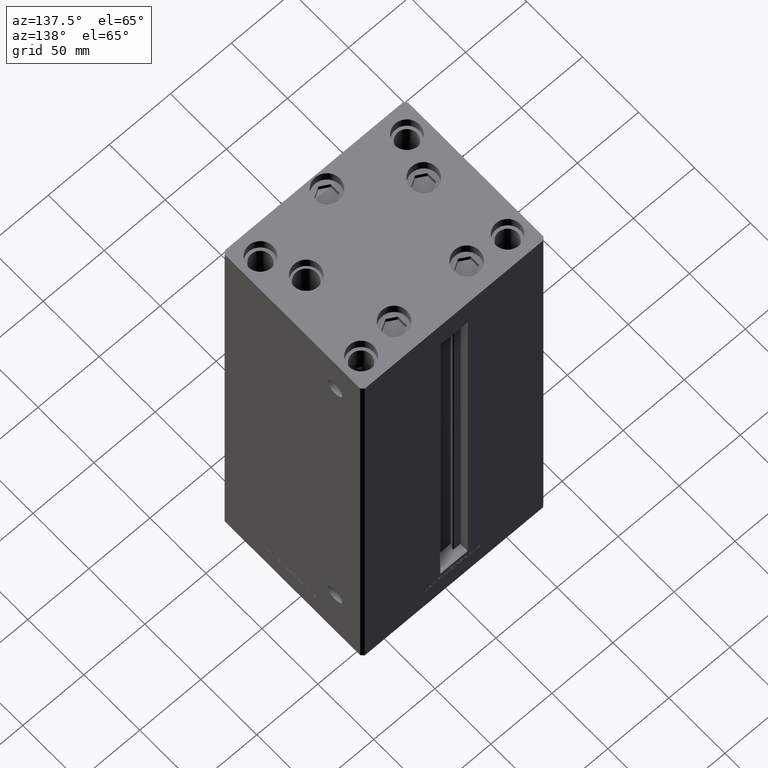
[diagram: clean part render]
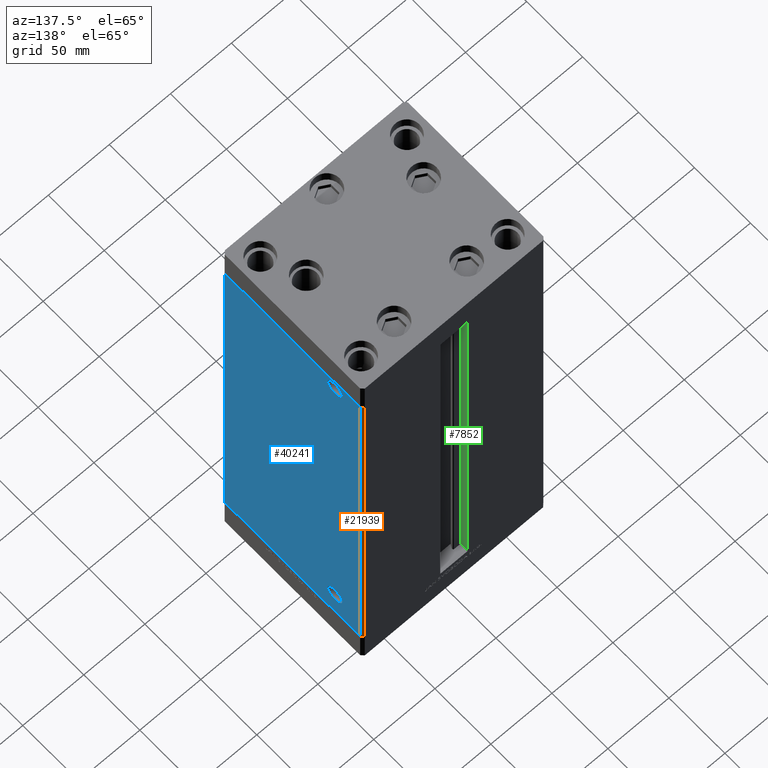
[diagram: same view with three faces highlighted in distinct colors, each labeled with its STEP entity id]
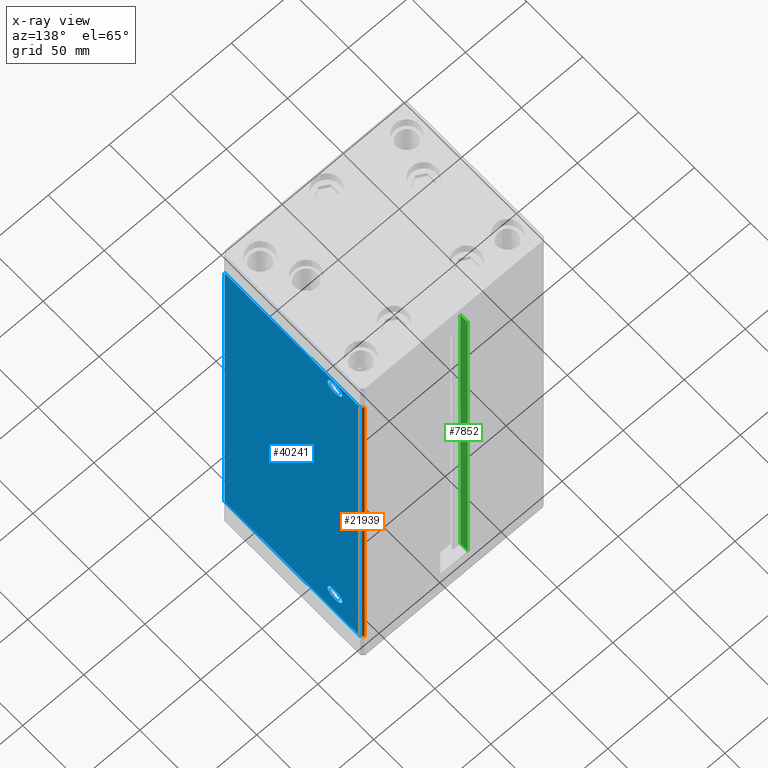
[diagram: x-ray of the same camera — body ghosted, the three highlighted faces saturated]
A machine part, auxiliary view with three faces highlighted in distinct colors.
The next image is the same camera in x-ray (body ghosted, the three faces saturated) — at least one of them is partly hidden behind the body in this view.
Their STEP definitions:

[orange] entity #21939 — the highlighted planar face has unit normal (0.7071, 0.7071, 0).
#159 = CARTESIAN_POINT ( 'NONE',  ( 73.00000000000001421, 62.50000000000000000, 0.000000000000000000 ) ) ;
#531 = CARTESIAN_POINT ( 'NONE',  ( 73.00000000000001421, 62.50000000000000000, 327.0000000000000000 ) ) ;
#1547 = DIRECTION ( 'NONE',  ( 0.7071067811865474617, -0.7071067811865474617, 0.000000000000000000 ) ) ;
#1900 = CARTESIAN_POINT ( 'NONE',  ( 73.00000000000001421, 62.50000000000000000, 327.0000000000000000 ) ) ;
#3966 = VECTOR ( 'NONE', #17915, 1000.000000000000114 ) ;
#4457 = VERTEX_POINT ( 'NONE', #159 ) ;
#5680 = LINE ( 'NONE', #10410, #3966 ) ;
#5817 = VERTEX_POINT ( 'NONE', #13581 ) ;
#6409 = DIRECTION ( 'NONE',  ( -0.000000000000000000, -0.000000000000000000, -1.000000000000000000 ) ) ;
#7306 = DIRECTION ( 'NONE',  ( -0.000000000000000000, -0.000000000000000000, -1.000000000000000000 ) ) ;
#9971 = VECTOR ( 'NONE', #1547, 1000.000000000000114 ) ;
#10410 = CARTESIAN_POINT ( 'NONE',  ( 73.00000000000001421, 62.50000000000000000, 0.000000000000000000 ) ) ;
#13076 = ORIENTED_EDGE ( 'NONE', *, *, #38997, .T. ) ;
#13581 = CARTESIAN_POINT ( 'NONE',  ( 75.00000000000001421, 60.50000000000000000, 0.000000000000000000 ) ) ;
#14394 = LINE ( 'NONE', #33140, #48057 ) ;
#14918 = ORIENTED_EDGE ( 'NONE', *, *, #16896, .F. ) ;
#16896 = EDGE_CURVE ( 'NONE', #4457, #5817, #5680, .T. ) ;
#17915 = DIRECTION ( 'NONE',  ( 0.7071067811865474617, -0.7071067811865474617, 0.000000000000000000 ) ) ;
#19343 = ORIENTED_EDGE ( 'NONE', *, *, #28797, .T. ) ;
#19863 = VECTOR ( 'NONE', #7306, 1000.000000000000000 ) ;
#21939 = ADVANCED_FACE ( 'NONE', ( #31906 ), #48089, .T. ) ;
#22063 = VERTEX_POINT ( 'NONE', #25878 ) ;
#22816 = LINE ( 'NONE', #45265, #19863 ) ;
#23570 = CARTESIAN_POINT ( 'NONE',  ( 73.00000000000001421, 62.50000000000000000, 327.0000000000000000 ) ) ;
#25021 = EDGE_LOOP ( 'NONE', ( #14918, #44081, #13076, #19343 ) ) ;
#25878 = CARTESIAN_POINT ( 'NONE',  ( 75.00000000000001421, 60.50000000000000000, 327.0000000000000000 ) ) ;
#28402 = DIRECTION ( 'NONE',  ( -0.7071067811865474617, 0.7071067811865474617, 0.000000000000000000 ) ) ;
#28797 = EDGE_CURVE ( 'NONE', #22063, #5817, #14394, .T. ) ;
#31906 = FACE_OUTER_BOUND ( 'NONE', #25021, .T. ) ;
#33140 = CARTESIAN_POINT ( 'NONE',  ( 75.00000000000001421, 60.50000000000000000, 327.0000000000000000 ) ) ;
#35772 = LINE ( 'NONE', #23570, #9971 ) ;
#38997 = EDGE_CURVE ( 'NONE', #40280, #22063, #35772, .T. ) ;
#39370 = DIRECTION ( 'NONE',  ( 0.7071067811865475727, 0.7071067811865475727, -0.000000000000000000 ) ) ;
#40280 = VERTEX_POINT ( 'NONE', #531 ) ;
#43120 = AXIS2_PLACEMENT_3D ( 'NONE', #1900, #39370, #28402 ) ;
#44081 = ORIENTED_EDGE ( 'NONE', *, *, #47719, .F. ) ;
#45265 = CARTESIAN_POINT ( 'NONE',  ( 73.00000000000001421, 62.50000000000000000, 327.0000000000000000 ) ) ;
#47719 = EDGE_CURVE ( 'NONE', #40280, #4457, #22816, .T. ) ;
#48057 = VECTOR ( 'NONE', #6409, 1000.000000000000000 ) ;
#48089 = PLANE ( 'NONE',  #43120 ) ;

[blue] entity #40241 — the highlighted planar face has unit normal (1, -0, 0).
#789 = EDGE_CURVE ( 'NONE', #23866, #26003, #41875, .T. ) ;
#3796 = DIRECTION ( 'NONE',  ( 1.000000000000000000, -2.293849224432141861E-16, 0.000000000000000000 ) ) ;
#5817 = VERTEX_POINT ( 'NONE', #13581 ) ;
#6409 = DIRECTION ( 'NONE',  ( -0.000000000000000000, -0.000000000000000000, -1.000000000000000000 ) ) ;
#6934 = ORIENTED_EDGE ( 'NONE', *, *, #38247, .F. ) ;
#7827 = CARTESIAN_POINT ( 'NONE',  ( 75.00000000000001421, 60.50000000000000000, 327.0000000000000000 ) ) ;
#7913 = CARTESIAN_POINT ( 'NONE',  ( 75.00000000000001421, 44.58000000000000540, 24.00000000000000711 ) ) ;
#8686 = CARTESIAN_POINT ( 'NONE',  ( 75.00000000000001421, 31.41999999999999105, 24.00000000000000711 ) ) ;
#10513 = DIRECTION ( 'NONE',  ( 0.000000000000000000, 1.000000000000000000, 0.000000000000000000 ) ) ;
#11194 = EDGE_CURVE ( 'NONE', #5817, #36886, #20135, .T. ) ;
#11327 = LINE ( 'NONE', #7827, #18315 ) ;
#12875 = CARTESIAN_POINT ( 'NONE',  ( 75.00000000000001421, 60.50000000000000000, 0.000000000000000000 ) ) ;
#13016 = AXIS2_PLACEMENT_3D ( 'NONE', #41290, #45024, #40308 ) ;
#13180 = CIRCLE ( 'NONE', #36327, 6.579999999999988525 ) ;
#13262 = AXIS2_PLACEMENT_3D ( 'NONE', #29065, #3796, #37766 ) ;
#13432 = LINE ( 'NONE', #28436, #39429 ) ;
#13581 = CARTESIAN_POINT ( 'NONE',  ( 75.00000000000001421, 60.50000000000000000, 0.000000000000000000 ) ) ;
#14394 = LINE ( 'NONE', #33140, #48057 ) ;
#14513 = DIRECTION ( 'NONE',  ( 1.000000000000000000, -2.275047181608927644E-16, 0.000000000000000000 ) ) ;
#15775 = EDGE_LOOP ( 'NONE', ( #43745, #17147, #36668, #42559 ) ) ;
#16673 = DIRECTION ( 'NONE',  ( 0.000000000000000000, 1.000000000000000000, 0.000000000000000000 ) ) ;
#17147 = ORIENTED_EDGE ( 'NONE', *, *, #28797, .F. ) ;
#18315 = VECTOR ( 'NONE', #42301, 1000.000000000000000 ) ;
#18671 = EDGE_CURVE ( 'NONE', #22063, #22925, #11327, .T. ) ;
#19008 = ORIENTED_EDGE ( 'NONE', *, *, #29496, .F. ) ;
#20135 = LINE ( 'NONE', #12875, #32548 ) ;
#21326 = PLANE ( 'NONE',  #13262 ) ;
#21749 = CIRCLE ( 'NONE', #48058, 6.580000000000009841 ) ;
#22063 = VERTEX_POINT ( 'NONE', #25878 ) ;
#22365 = DIRECTION ( 'NONE',  ( -2.293849224432141861E-16, -1.000000000000000000, 0.000000000000000000 ) ) ;
#22512 = CARTESIAN_POINT ( 'NONE',  ( 74.99999999999998579, -60.50000000000000000, 0.000000000000000000 ) ) ;
#22597 = CIRCLE ( 'NONE', #13016, 6.579999999999988525 ) ;
#22925 = VERTEX_POINT ( 'NONE', #36375 ) ;
#23011 = ORIENTED_EDGE ( 'NONE', *, *, #26722, .F. ) ;
#23866 = VERTEX_POINT ( 'NONE', #8686 ) ;
#24258 = EDGE_LOOP ( 'NONE', ( #23011, #30645 ) ) ;
#25491 = VERTEX_POINT ( 'NONE', #32570 ) ;
#25878 = CARTESIAN_POINT ( 'NONE',  ( 75.00000000000001421, 60.50000000000000000, 327.0000000000000000 ) ) ;
#26003 = VERTEX_POINT ( 'NONE', #7913 ) ;
#26722 = EDGE_CURVE ( 'NONE', #26003, #23866, #21749, .T. ) ;
#28096 = DIRECTION ( 'NONE',  ( 1.000000000000000000, -2.275047181608927644E-16, 0.000000000000000000 ) ) ;
#28436 = CARTESIAN_POINT ( 'NONE',  ( 74.99999999999998579, -60.50000000000000000, 327.0000000000000000 ) ) ;
#28797 = EDGE_CURVE ( 'NONE', #22063, #5817, #14394, .T. ) ;
#28825 = FACE_BOUND ( 'NONE', #33007, .T. ) ;
#28935 = DIRECTION ( 'NONE',  ( -0.000000000000000000, -0.000000000000000000, -1.000000000000000000 ) ) ;
#29065 = CARTESIAN_POINT ( 'NONE',  ( 75.00000000000001421, 60.50000000000000000, 327.0000000000000000 ) ) ;
#29496 = EDGE_CURVE ( 'NONE', #34775, #25491, #22597, .T. ) ;
#30645 = ORIENTED_EDGE ( 'NONE', *, *, #789, .F. ) ;
#32548 = VECTOR ( 'NONE', #22365, 1000.000000000000000 ) ;
#32570 = CARTESIAN_POINT ( 'NONE',  ( 75.00000000000001421, 31.42000000000000881, 318.0000000000000000 ) ) ;
#33007 = EDGE_LOOP ( 'NONE', ( #19008, #6934 ) ) ;
#33041 = EDGE_CURVE ( 'NONE', #22925, #36886, #13432, .T. ) ;
#33140 = CARTESIAN_POINT ( 'NONE',  ( 75.00000000000001421, 60.50000000000000000, 327.0000000000000000 ) ) ;
#34775 = VERTEX_POINT ( 'NONE', #40831 ) ;
#36327 = AXIS2_PLACEMENT_3D ( 'NONE', #47864, #47617, #16673 ) ;
#36375 = CARTESIAN_POINT ( 'NONE',  ( 74.99999999999998579, -60.50000000000000000, 327.0000000000000000 ) ) ;
#36668 = ORIENTED_EDGE ( 'NONE', *, *, #18671, .T. ) ;
#36886 = VERTEX_POINT ( 'NONE', #22512 ) ;
#37766 = DIRECTION ( 'NONE',  ( 2.293849224432141861E-16, 1.000000000000000000, 0.000000000000000000 ) ) ;
#38247 = EDGE_CURVE ( 'NONE', #25491, #34775, #13180, .T. ) ;
#38822 = CARTESIAN_POINT ( 'NONE',  ( 75.00000000000001421, 38.00000000000000000, 24.00000000000000711 ) ) ;
#39429 = VECTOR ( 'NONE', #28935, 1000.000000000000000 ) ;
#40039 = FACE_BOUND ( 'NONE', #24258, .T. ) ;
#40241 = ADVANCED_FACE ( 'NONE', ( #40039, #28825, #40286 ), #21326, .T. ) ;
#40286 = FACE_OUTER_BOUND ( 'NONE', #15775, .T. ) ;
#40308 = DIRECTION ( 'NONE',  ( 0.000000000000000000, 1.000000000000000000, 0.000000000000000000 ) ) ;
#40831 = CARTESIAN_POINT ( 'NONE',  ( 75.00000000000001421, 44.57999999999999119, 318.0000000000000000 ) ) ;
#41290 = CARTESIAN_POINT ( 'NONE',  ( 75.00000000000001421, 38.00000000000000000, 318.0000000000000000 ) ) ;
#41875 = CIRCLE ( 'NONE', #46635, 6.580000000000009841 ) ;
#42301 = DIRECTION ( 'NONE',  ( -2.293849224432141861E-16, -1.000000000000000000, 0.000000000000000000 ) ) ;
#42559 = ORIENTED_EDGE ( 'NONE', *, *, #33041, .T. ) ;
#43745 = ORIENTED_EDGE ( 'NONE', *, *, #11194, .F. ) ;
#45024 = DIRECTION ( 'NONE',  ( 1.000000000000000000, -2.275047181608927644E-16, 0.000000000000000000 ) ) ;
#46554 = DIRECTION ( 'NONE',  ( 0.000000000000000000, 1.000000000000000000, 0.000000000000000000 ) ) ;
#46635 = AXIS2_PLACEMENT_3D ( 'NONE', #38822, #28096, #46554 ) ;
#47617 = DIRECTION ( 'NONE',  ( 1.000000000000000000, -2.275047181608927644E-16, 0.000000000000000000 ) ) ;
#47736 = CARTESIAN_POINT ( 'NONE',  ( 75.00000000000001421, 38.00000000000000000, 24.00000000000000711 ) ) ;
#47864 = CARTESIAN_POINT ( 'NONE',  ( 75.00000000000001421, 38.00000000000000000, 318.0000000000000000 ) ) ;
#48057 = VECTOR ( 'NONE', #6409, 1000.000000000000000 ) ;
#48058 = AXIS2_PLACEMENT_3D ( 'NONE', #47736, #14513, #10513 ) ;

[green] entity #7852 — the highlighted planar face has unit normal (-1, 0, 0).
#2877 = VECTOR ( 'NONE', #39979, 1000.000000000000000 ) ;
#4341 = VECTOR ( 'NONE', #17140, 1000.000000000000000 ) ;
#4594 = CARTESIAN_POINT ( 'NONE',  ( -11.25000000000000178, 55.99999999999999289, 0.000000000000000000 ) ) ;
#5088 = DIRECTION ( 'NONE',  ( 0.000000000000000000, 0.000000000000000000, 1.000000000000000000 ) ) ;
#5422 = ORIENTED_EDGE ( 'NONE', *, *, #17192, .F. ) ;
#7852 = ADVANCED_FACE ( 'NONE', ( #16096 ), #31835, .F. ) ;
#11013 = VERTEX_POINT ( 'NONE', #27380 ) ;
#12493 = AXIS2_PLACEMENT_3D ( 'NONE', #4594, #19847, #5088 ) ;
#16096 = FACE_OUTER_BOUND ( 'NONE', #31583, .T. ) ;
#16735 = CARTESIAN_POINT ( 'NONE',  ( -11.25000000000000178, 0.000000000000000000, 327.0000000000000000 ) ) ;
#17140 = DIRECTION ( 'NONE',  ( -0.000000000000000000, -0.000000000000000000, 1.000000000000000000 ) ) ;
#17192 = EDGE_CURVE ( 'NONE', #23147, #46282, #44259, .T. ) ;
#17998 = LINE ( 'NONE', #48200, #2877 ) ;
#19847 = DIRECTION ( 'NONE',  ( -1.000000000000000000, 0.000000000000000000, 0.000000000000000000 ) ) ;
#20640 = LINE ( 'NONE', #36105, #4341 ) ;
#20974 = DIRECTION ( 'NONE',  ( 0.000000000000000000, 1.000000000000000000, 0.000000000000000000 ) ) ;
#21348 = VERTEX_POINT ( 'NONE', #32513 ) ;
#21392 = ORIENTED_EDGE ( 'NONE', *, *, #40376, .F. ) ;
#22245 = ORIENTED_EDGE ( 'NONE', *, *, #33301, .T. ) ;
#23147 = VERTEX_POINT ( 'NONE', #26385 ) ;
#26385 = CARTESIAN_POINT ( 'NONE',  ( -11.25000000000000178, 62.49999999999999289, 0.000000000000000000 ) ) ;
#27380 = CARTESIAN_POINT ( 'NONE',  ( -11.25000000000000178, 55.99999999999999289, 327.0000000000000000 ) ) ;
#29294 = CARTESIAN_POINT ( 'NONE',  ( -11.25000000000000178, 55.99999999999999289, 0.000000000000000000 ) ) ;
#31583 = EDGE_LOOP ( 'NONE', ( #21392, #5422, #22245, #33492 ) ) ;
#31835 = PLANE ( 'NONE',  #12493 ) ;
#32513 = CARTESIAN_POINT ( 'NONE',  ( -11.25000000000000178, 62.49999999999999289, 327.0000000000000000 ) ) ;
#33301 = EDGE_CURVE ( 'NONE', #23147, #21348, #20640, .T. ) ;
#33492 = ORIENTED_EDGE ( 'NONE', *, *, #37909, .F. ) ;
#34324 = VECTOR ( 'NONE', #44984, 1000.000000000000000 ) ;
#35252 = CARTESIAN_POINT ( 'NONE',  ( -11.25000000000000178, 55.99999999999999289, 0.000000000000000000 ) ) ;
#36105 = CARTESIAN_POINT ( 'NONE',  ( -11.25000000000000178, 62.49999999999999289, 0.000000000000000000 ) ) ;
#37909 = EDGE_CURVE ( 'NONE', #11013, #21348, #39942, .T. ) ;
#38664 = VECTOR ( 'NONE', #20974, 1000.000000000000000 ) ;
#39942 = LINE ( 'NONE', #16735, #38664 ) ;
#39979 = DIRECTION ( 'NONE',  ( -0.000000000000000000, -0.000000000000000000, 1.000000000000000000 ) ) ;
#40376 = EDGE_CURVE ( 'NONE', #46282, #11013, #17998, .T. ) ;
#44259 = LINE ( 'NONE', #29294, #34324 ) ;
#44984 = DIRECTION ( 'NONE',  ( -0.000000000000000000, -1.000000000000000000, -0.000000000000000000 ) ) ;
#46282 = VERTEX_POINT ( 'NONE', #35252 ) ;
#48200 = CARTESIAN_POINT ( 'NONE',  ( -11.25000000000000178, 55.99999999999999289, 0.000000000000000000 ) ) ;